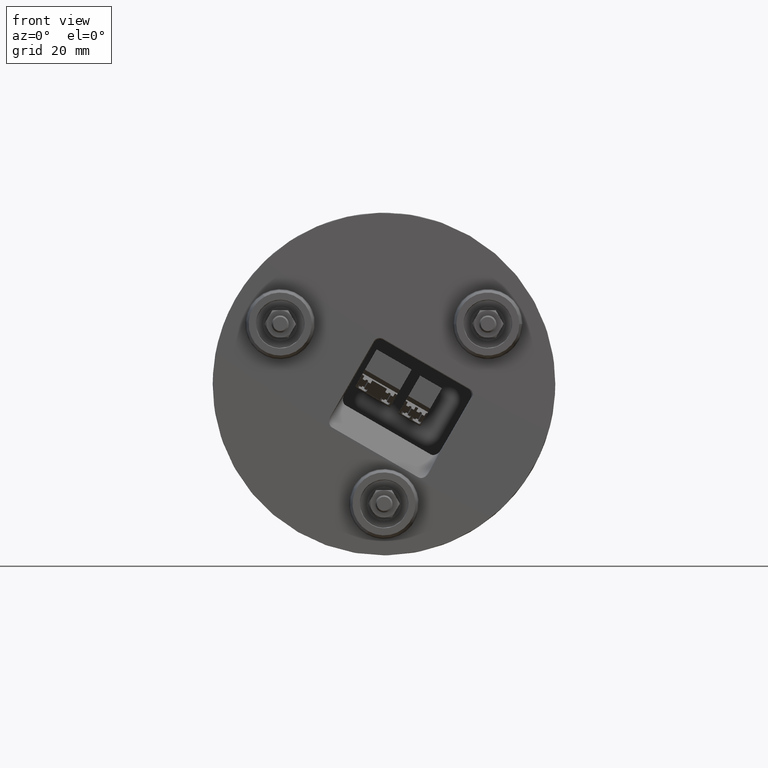
[diagram: clean part render]
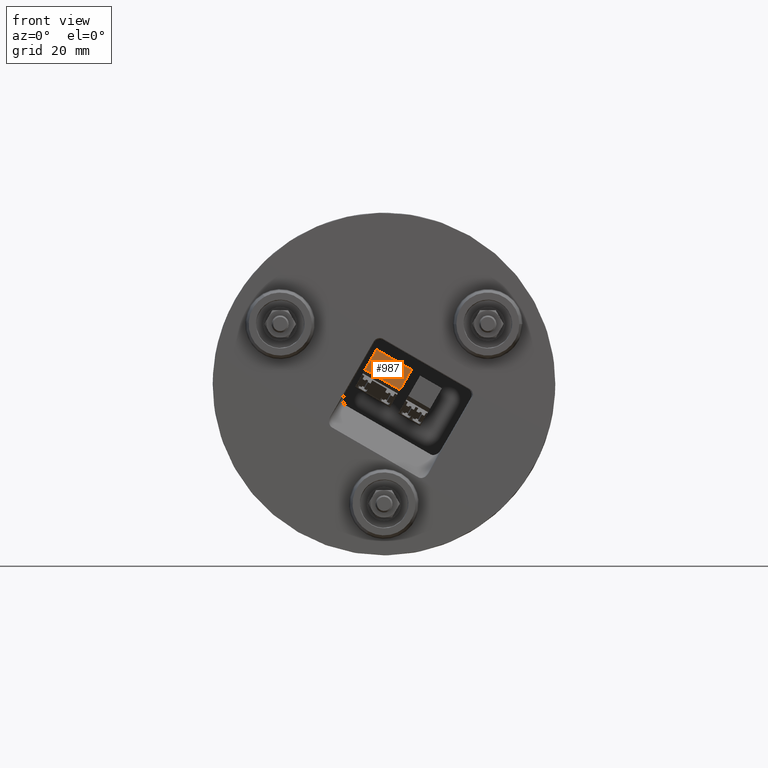
[diagram: same view with one face highlighted and labeled with its STEP entity id]
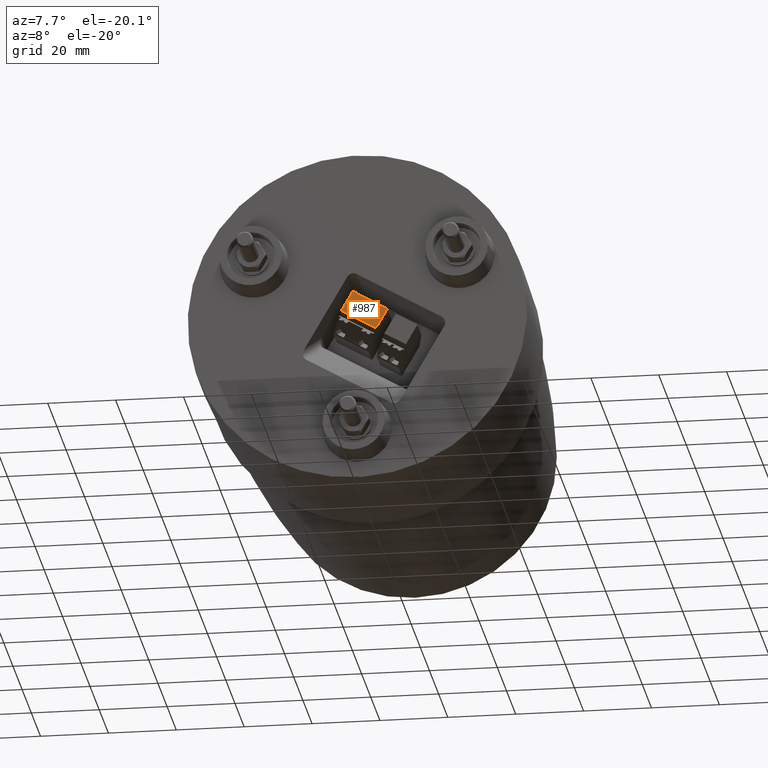
[diagram: same view with one face highlighted and labeled with its STEP entity id]
A machine part, front view. The second image highlights one B-rep face of the part: STEP entity #987.
A second angle (auxiliary view) of the same face is appended — the face is thin or edge-on in the first view.
In plain terms, the highlighted planar face has unit normal (-0, -1, 0).
Its self-contained STEP definition (entity closure, byte-faithful):
#115 = VERTEX_POINT ( 'NONE', #1437 ) ;
#153 = CARTESIAN_POINT ( 'NONE',  ( 4.667997733926899429, 8.950006000000000128, -1.734790755222239911 ) ) ;
#263 = DIRECTION ( 'NONE',  ( -1.000000000000000000, 5.473892273054959751E-17, 0.000000000000000000 ) ) ;
#283 = ORIENTED_EDGE ( 'NONE', *, *, #8143, .T. ) ;
#356 = PLANE ( 'NONE',  #694 ) ;
#378 = LINE ( 'NONE', #8603, #6511 ) ;
#442 = FACE_OUTER_BOUND ( 'NONE', #3349, .T. ) ;
#612 = VECTOR ( 'NONE', #5368, 1000.000000000000114 ) ;
#694 = AXIS2_PLACEMENT_3D ( 'NONE', #2289, #3032, #263 ) ;
#857 = DIRECTION ( 'NONE',  ( 0.5000000000000099920, 6.750380211652858112E-17, 0.8660254037844328234 ) ) ;
#987 = ADVANCED_FACE ( 'NONE', ( #442 ), #356, .T. ) ;
#1118 = VERTEX_POINT ( 'NONE', #5215 ) ;
#1285 = ORIENTED_EDGE ( 'NONE', *, *, #6994, .F. ) ;
#1433 = LINE ( 'NONE', #4146, #4682 ) ;
#1437 = CARTESIAN_POINT ( 'NONE',  ( -5.568422538805099187, 8.950006000000000128, 4.175209244777880357 ) ) ;
#1561 = DIRECTION ( 'NONE',  ( 0.8660254037844328234, -1.021804018705681843E-16, -0.5000000000000099920 ) ) ;
#1836 = VECTOR ( 'NONE', #1561, 1000.000000000000114 ) ;
#2040 = VERTEX_POINT ( 'NONE', #6057 ) ;
#2289 = CARTESIAN_POINT ( 'NONE',  ( -2.159235540150354904, 8.950006000000000128, 10.08009433895098184 ) ) ;
#3032 = DIRECTION ( 'NONE',  ( -5.473892273054959751E-17, -1.000000000000000000, 1.095502084202361979E-16 ) ) ;
#3349 = EDGE_LOOP ( 'NONE', ( #283, #7013, #4125, #1285 ) ) ;
#3598 = LINE ( 'NONE', #7546, #1836 ) ;
#4125 = ORIENTED_EDGE ( 'NONE', *, *, #6997, .T. ) ;
#4146 = CARTESIAN_POINT ( 'NONE',  ( 6.372591232581600096, 8.950006000000000128, 1.217651790699218139 ) ) ;
#4682 = VECTOR ( 'NONE', #857, 1000.000000000000114 ) ;
#5093 = VERTEX_POINT ( 'NONE', #153 ) ;
#5215 = CARTESIAN_POINT ( 'NONE',  ( 8.077184732581640603, 8.950006000000000128, 4.170094338950864454 ) ) ;
#5368 = DIRECTION ( 'NONE',  ( 0.8660254037844328234, -1.021804018705681843E-16, -0.5000000000000099920 ) ) ;
#6057 = CARTESIAN_POINT ( 'NONE',  ( -2.159235540150354904, 8.950006000000000128, 10.08009433895098184 ) ) ;
#6178 = EDGE_CURVE ( 'NONE', #115, #5093, #7477, .T. ) ;
#6511 = VECTOR ( 'NONE', #8469, 1000.000000000000114 ) ;
#6994 = EDGE_CURVE ( 'NONE', #2040, #1118, #3598, .T. ) ;
#6997 = EDGE_CURVE ( 'NONE', #5093, #1118, #1433, .T. ) ;
#7013 = ORIENTED_EDGE ( 'NONE', *, *, #6178, .T. ) ;
#7438 = CARTESIAN_POINT ( 'NONE',  ( -0.4502124037844280058, 8.950006000000000128, 1.220209242447638065 ) ) ;
#7477 = LINE ( 'NONE', #7438, #612 ) ;
#7546 = CARTESIAN_POINT ( 'NONE',  ( 2.958974596215644848, 8.950006000000000128, 7.125094338950919592 ) ) ;
#8143 = EDGE_CURVE ( 'NONE', #2040, #115, #378, .T. ) ;
#8469 = DIRECTION ( 'NONE',  ( -0.5000000000000099920, -6.750380211652858112E-17, -0.8660254037844328234 ) ) ;
#8603 = CARTESIAN_POINT ( 'NONE',  ( -3.863829040150394967, 8.950006000000000128, 7.127651790699339962 ) ) ;